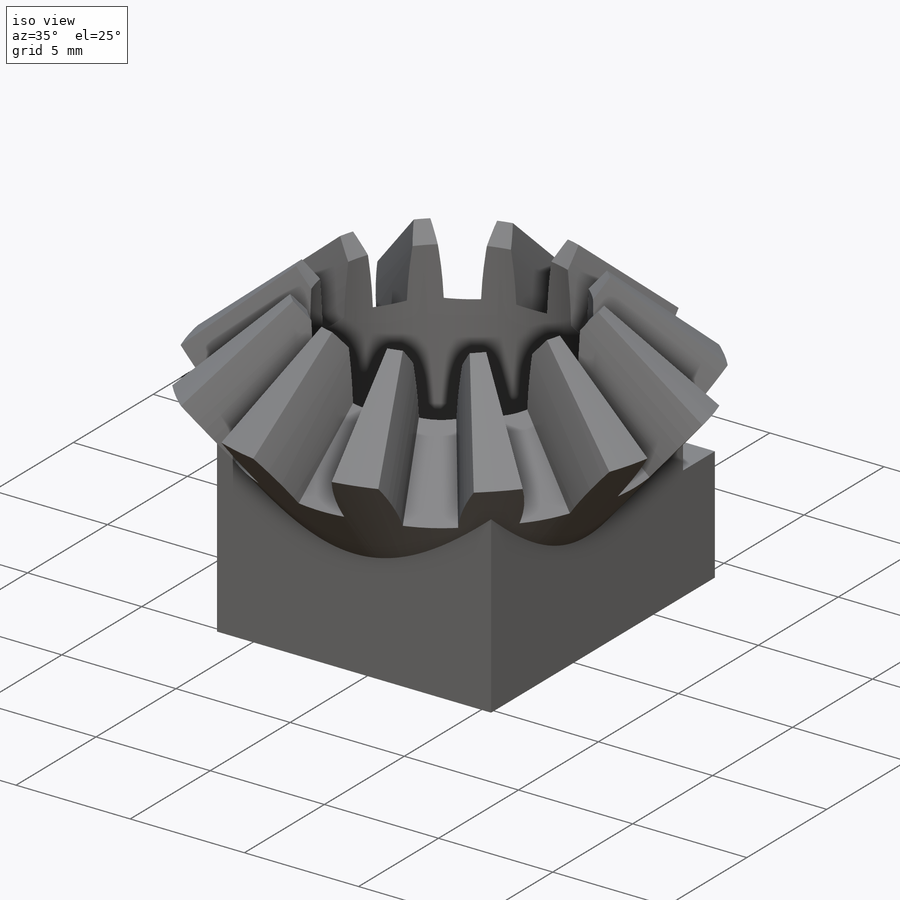
[diagram: iso view]
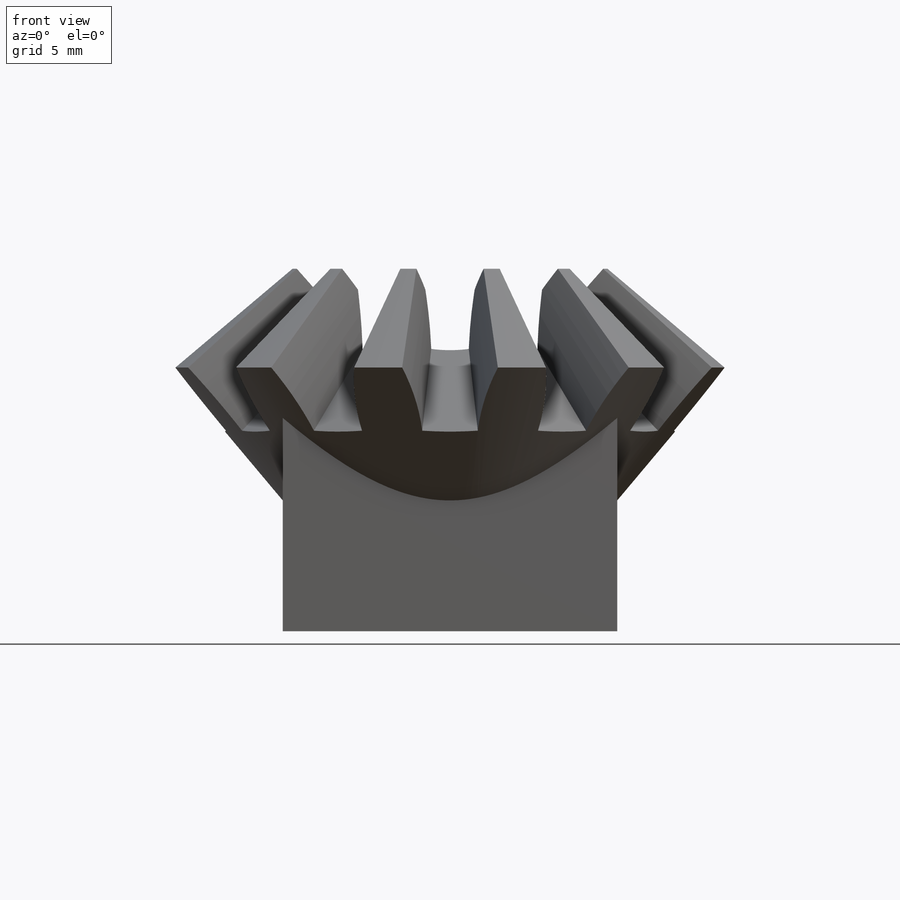
[diagram: front view]
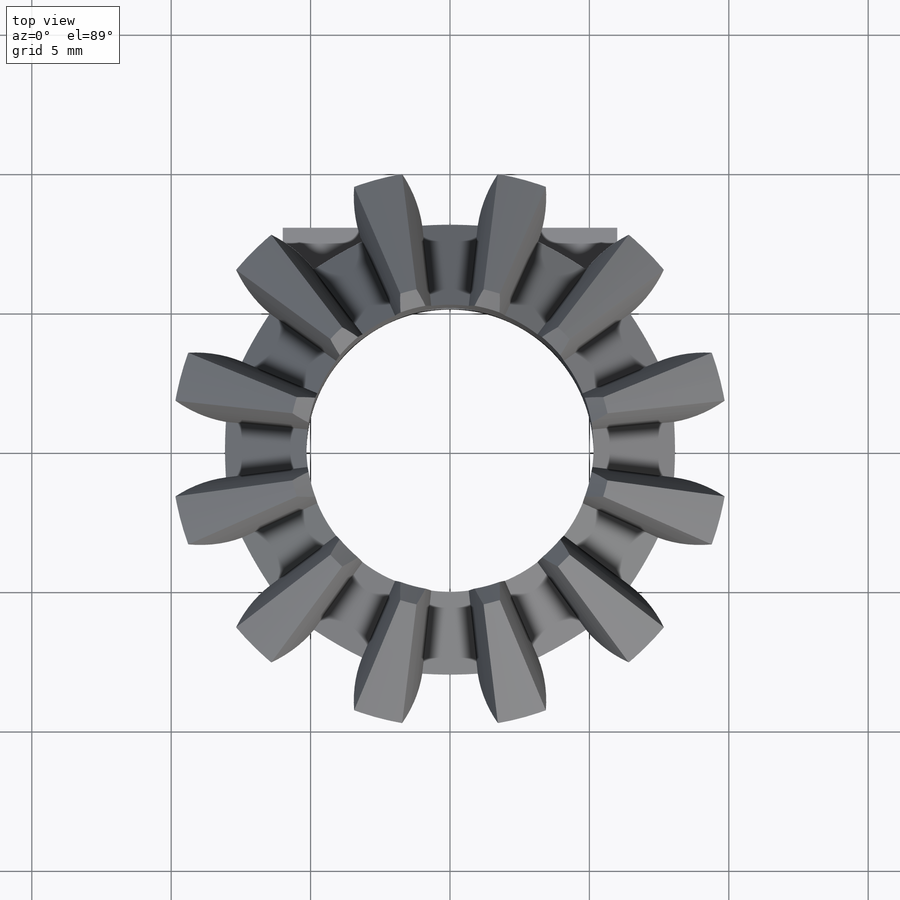
[diagram: top view]
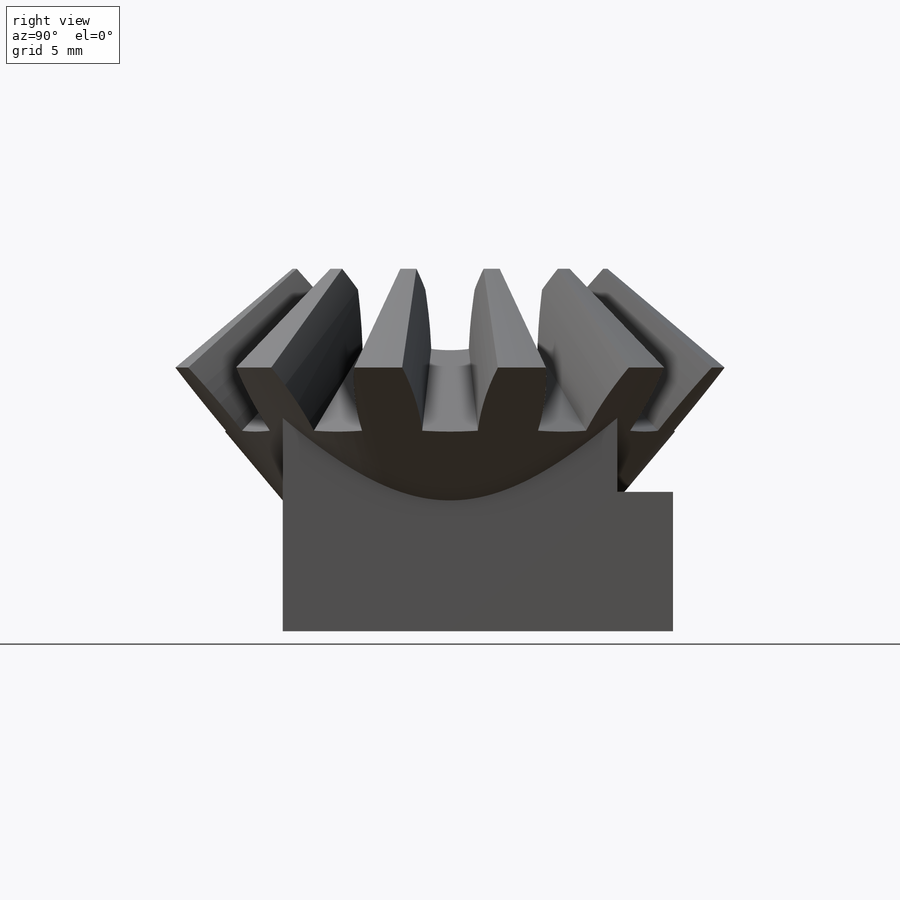
[diagram: right view]
SOLIDWORKS PART (.sldprt)
format: sldprt  version: not decoded by parser v0  size: 361,984 bytes
history: native  units: mm
features: sketch x8, plane x4, cut_extrude x3, extrude x2, material x1, revolve x1, pattern_circular x1 (+10 scaffold rows collapsed)
feature tree (30):
  scaffold x10  (default folders/planes/origin — collapsed)
  material  "uhlíková ocel 7850"
  plane  "Přední rovina"
  plane  "Horní rovina"
  plane  "Pravá rovina"
  sketch  "Skica1"  dims[c1.D1=~38.322909mm c2.D1=50.0deg c2.D2=10.0mm c2.D3=5.0mm c2.D4=5.0mm c2.D5=2.0mm]
  revolve  "Rotovat1"  Angle=360deg
  sketch  "Skica2"
  plane  "Rovina1"
  sketch  "Skica3"  dims[c1.D5=10.0mm c1.D1=~3.147472mm c2.D1=90.0deg c3.D1=~3.147472mm c4.D1=90.0deg c5.D1=1.0mm c5.D2=0.5mm c5.D3=3.0mm c5.D4=2.0mm]
  sketch  "Skica4"
  cut_extrude  "Odebrat vysunutím1"  [1 undecoded]
  pattern_circular  "Kruhové pole2"  Count=12 Angle=30deg
  sketch  "Skica7"  dims[D1=12.0mm]
  extrude  "Přidat vysunutím1"  Depth=3.5mm
  sketch  "Skica6"  dims[D1=10.3mm]
  cut_extrude  "Odebrat vysunutím2"  Depth=20mm
  sketch  "Skica8"  dims[D2=5.0mm D1=0.0mm]
  extrude  "Přidat vysunutím2"  Depth=2mm
  sketch  "Skica9"  dims[D1=2.0mm D2=1.0mm]
  cut_extrude  "Odebrat vysunutím3"  Depth=4mm
decode coverage: 12 of 15 modeling features carry decoded parameters
note: ~ marks probable driven/reference dimensions
note: 1 parameter value undecoded
note: suppression state not decoded; provenance and decode notes live in map.json
